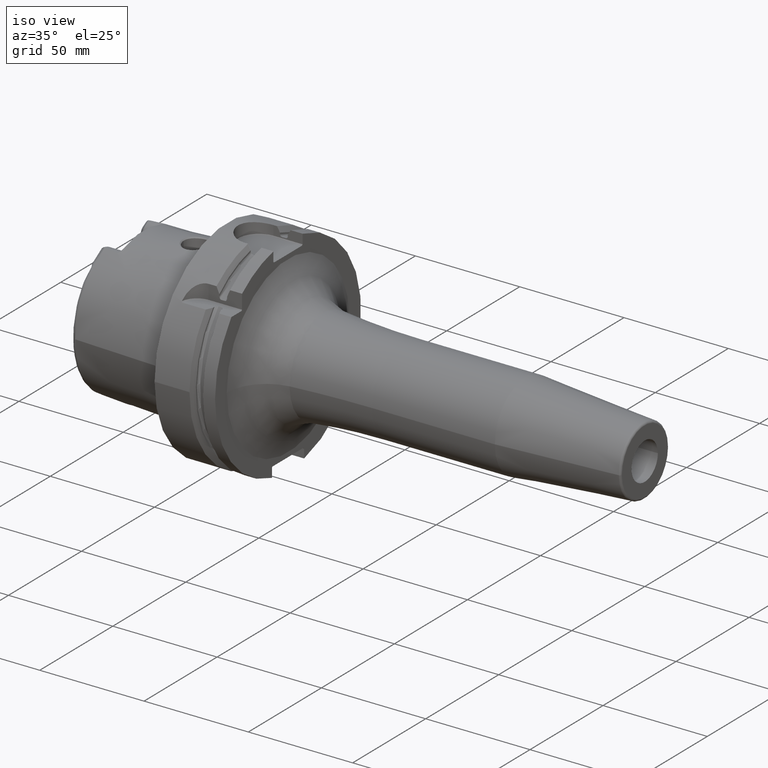
[diagram: clean part render]
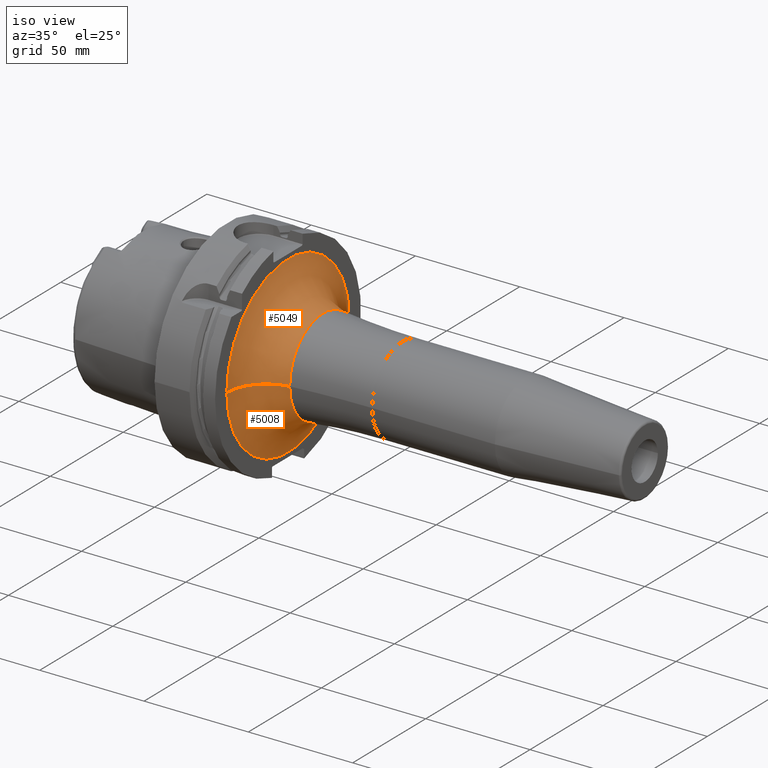
[diagram: same view with one multi-face feature highlighted, each face labeled with its STEP entity id]
A machine part, iso view. The highlighted faces form ONE feature: a constant-radius fillet chain: 2 tangent blend faces with common blend radius 19 mm. The faces share edges in the B-rep.
Their STEP definitions:
[1] entity #5008 (Torus):
#1091=CARTESIAN_POINT('',(2.9E1,0.E0,0.E0));
#1092=DIRECTION('',(1.E0,0.E0,0.E0));
#1093=DIRECTION('',(0.E0,-1.E0,0.E0));
#1094=AXIS2_PLACEMENT_3D('',#1091,#1092,#1093);
#1810=CARTESIAN_POINT('',(4.8E1,-4.196352785747E1,5.917488721252E-13));
#1811=DIRECTION('',(0.E0,-1.410156713622E-14,-1.E0));
#1812=DIRECTION('',(-1.E0,0.E0,0.E0));
#1813=AXIS2_PLACEMENT_3D('',#1810,#1811,#1812);
#1815=CARTESIAN_POINT('',(4.593353474320E1,0.E0,0.E0));
#1816=DIRECTION('',(1.E0,0.E0,0.E0));
#1817=DIRECTION('',(0.E0,-1.E0,0.E0));
#1818=AXIS2_PLACEMENT_3D('',#1815,#1816,#1817);
#1835=CARTESIAN_POINT('',(4.8E1,4.196352785747E1,-5.964395644042E-13));
#1836=DIRECTION('',(0.E0,1.421389048128E-14,1.E0));
#1837=DIRECTION('',(-1.E0,0.E0,0.E0));
#1838=AXIS2_PLACEMENT_3D('',#1835,#1836,#1837);
#3165=CARTESIAN_POINT('',(4.593353474320E1,-2.307623791576E1,0.E0));
#3166=CARTESIAN_POINT('',(4.593353474320E1,2.307623791576E1,0.E0));
#3167=VERTEX_POINT('',#3165);
#3168=VERTEX_POINT('',#3166);
#3169=CARTESIAN_POINT('',(2.9E1,-4.196352785747E1,-4.085603505129E-13));
#3170=CARTESIAN_POINT('',(2.9E1,4.196352785747E1,4.034213005058E-13));
#3171=VERTEX_POINT('',#3169);
#3172=VERTEX_POINT('',#3170);
#4994=CARTESIAN_POINT('',(4.8E1,0.E0,0.E0));
#4995=DIRECTION('',(1.E0,0.E0,0.E0));
#4996=DIRECTION('',(0.E0,-9.999939424486E-1,3.480670348097E-3));
#4997=AXIS2_PLACEMENT_3D('',#4994,#4995,#4996);
#4998=TOROIDAL_SURFACE('',#4997,4.196352785747E1,1.9E1);
#5000=ORIENTED_EDGE('',*,*,#4999,.T.);
#5002=ORIENTED_EDGE('',*,*,#5001,.F.);
#5003=ORIENTED_EDGE('',*,*,#4274,.F.);
#5005=ORIENTED_EDGE('',*,*,#5004,.T.);
#5006=EDGE_LOOP('',(#5000,#5002,#5003,#5005));
#5007=FACE_OUTER_BOUND('',#5006,.F.);
#5008=ADVANCED_FACE('',(#5007),#4998,.F.);
#1095=CIRCLE('',#1094,4.196352785747E1);
#1814=CIRCLE('',#1813,1.9E1);
#1819=CIRCLE('',#1818,2.307623791576E1);
#1839=CIRCLE('',#1838,1.9E1);
#4274=EDGE_CURVE('',#3171,#3172,#1095,.T.);
#4999=EDGE_CURVE('',#3167,#3168,#1819,.T.);
#5001=EDGE_CURVE('',#3172,#3168,#1839,.T.);
#5004=EDGE_CURVE('',#3171,#3167,#1814,.T.);
[2] entity #5049 (Torus):
#1096=CARTESIAN_POINT('',(2.9E1,0.E0,0.E0));
#1097=DIRECTION('',(1.E0,0.E0,0.E0));
#1098=DIRECTION('',(0.E0,1.E0,0.E0));
#1099=AXIS2_PLACEMENT_3D('',#1096,#1097,#1098);
#1810=CARTESIAN_POINT('',(4.8E1,-4.196352785747E1,5.917488721252E-13));
#1811=DIRECTION('',(0.E0,-1.410156713622E-14,-1.E0));
#1812=DIRECTION('',(-1.E0,0.E0,0.E0));
#1813=AXIS2_PLACEMENT_3D('',#1810,#1811,#1812);
#1830=CARTESIAN_POINT('',(4.593353474320E1,0.E0,0.E0));
#1831=DIRECTION('',(1.E0,0.E0,0.E0));
#1832=DIRECTION('',(0.E0,1.E0,0.E0));
#1833=AXIS2_PLACEMENT_3D('',#1830,#1831,#1832);
#1835=CARTESIAN_POINT('',(4.8E1,4.196352785747E1,-5.964395644042E-13));
#1836=DIRECTION('',(0.E0,1.421389048128E-14,1.E0));
#1837=DIRECTION('',(-1.E0,0.E0,0.E0));
#1838=AXIS2_PLACEMENT_3D('',#1835,#1836,#1837);
#3165=CARTESIAN_POINT('',(4.593353474320E1,-2.307623791576E1,0.E0));
#3166=CARTESIAN_POINT('',(4.593353474320E1,2.307623791576E1,0.E0));
#3167=VERTEX_POINT('',#3165);
#3168=VERTEX_POINT('',#3166);
#3169=CARTESIAN_POINT('',(2.9E1,-4.196352785747E1,-4.085603505129E-13));
#3170=CARTESIAN_POINT('',(2.9E1,4.196352785747E1,4.034213005058E-13));
#3171=VERTEX_POINT('',#3169);
#3172=VERTEX_POINT('',#3170);
#5038=CARTESIAN_POINT('',(4.8E1,0.E0,0.E0));
#5039=DIRECTION('',(1.E0,0.E0,0.E0));
#5040=DIRECTION('',(0.E0,9.999939424486E-1,-3.480670348097E-3));
#5041=AXIS2_PLACEMENT_3D('',#5038,#5039,#5040);
#5042=TOROIDAL_SURFACE('',#5041,4.196352785747E1,1.9E1);
#5043=ORIENTED_EDGE('',*,*,#4276,.F.);
#5044=ORIENTED_EDGE('',*,*,#5001,.T.);
#5045=ORIENTED_EDGE('',*,*,#5029,.T.);
#5046=ORIENTED_EDGE('',*,*,#5004,.F.);
#5047=EDGE_LOOP('',(#5043,#5044,#5045,#5046));
#5048=FACE_OUTER_BOUND('',#5047,.F.);
#5049=ADVANCED_FACE('',(#5048),#5042,.F.);
#1100=CIRCLE('',#1099,4.196352785747E1);
#1814=CIRCLE('',#1813,1.9E1);
#1834=CIRCLE('',#1833,2.307623791576E1);
#1839=CIRCLE('',#1838,1.9E1);
#4276=EDGE_CURVE('',#3172,#3171,#1100,.T.);
#5001=EDGE_CURVE('',#3172,#3168,#1839,.T.);
#5004=EDGE_CURVE('',#3171,#3167,#1814,.T.);
#5029=EDGE_CURVE('',#3168,#3167,#1834,.T.);